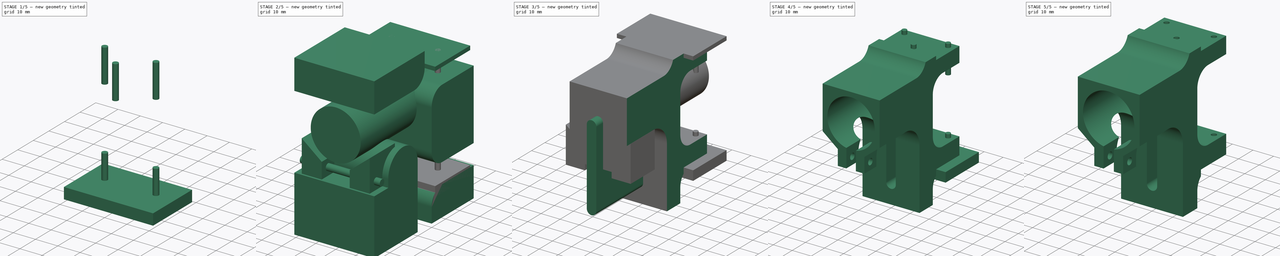
[diagram: build sequence overview — one tinted view per stage of 5, left to right]
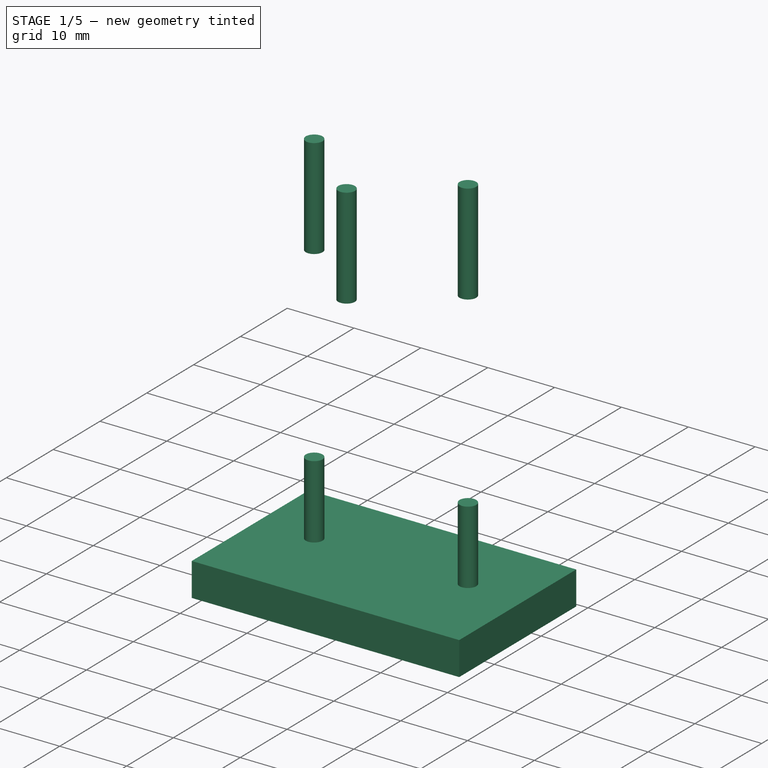
[diagram: stage 1 of 5 — iso view after this stage's code; geometry added in this stage tinted green]
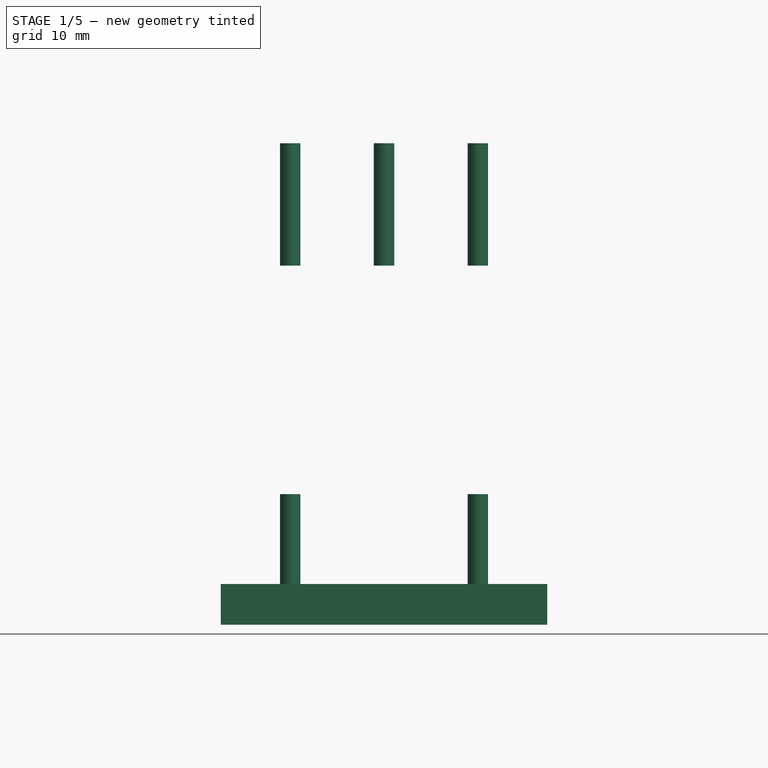
[diagram: stage 1 of 5 — front view after this stage's code; geometry added in this stage tinted green]
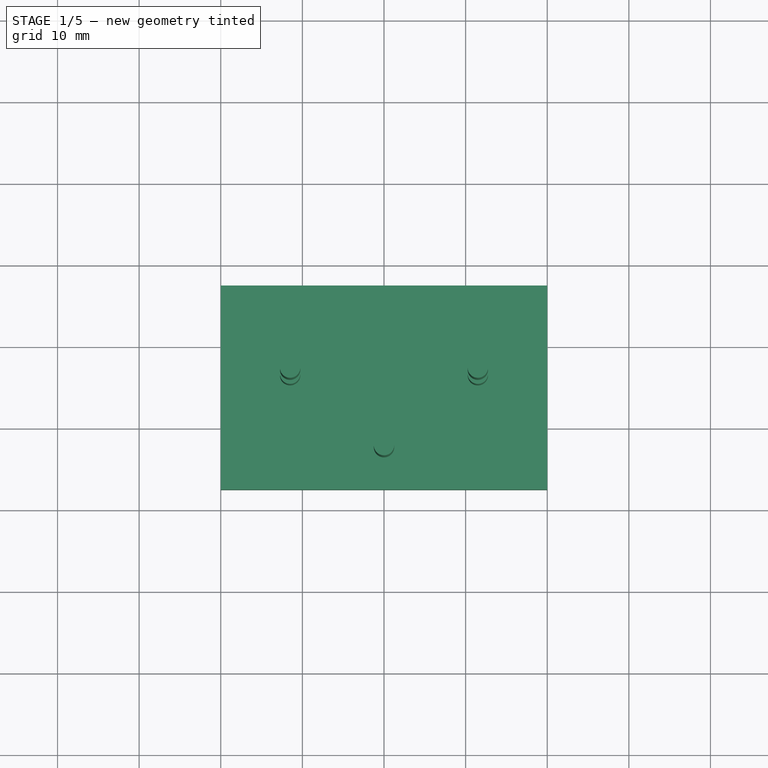
[diagram: stage 1 of 5 — top view after this stage's code; geometry added in this stage tinted green]
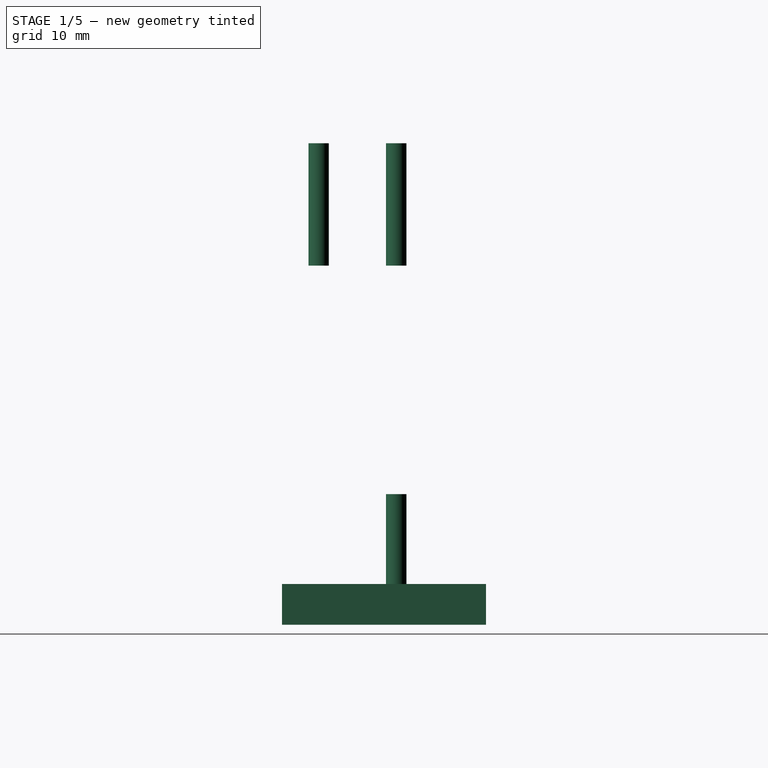
[diagram: stage 1 of 5 — right view after this stage's code; geometry added in this stage tinted green]
FCSTD DOCUMENT  (FreeCAD 0.16R6698 (Git))
Label: body-bracket-mt-holes
License: All rights reserved
LicenseURL: http://en.wikipedia.org/wiki/All_rights_reserved
objects: Sketcher::SketchObject×9, Part::Extrusion×9, Part::Cut×8
note: 26 computed .brp shape members not serialized (recipe doc carries the construction recipe); baked Part::Feature solids carry a one-line shape summary decoded from their .brp

FEATURE [Sketcher::SketchObject] Sketch011
  Placement = pos=(0,35,16) rot=(0,0,1;0rad)
  sketch-geometry (4):
    g0: LineSegment StartX=-20 StartY=32.5 StartZ=0 EndX=20 EndY=32.5 EndZ=0
    g1: LineSegment StartX=20 StartY=32.5 StartZ=0 EndX=20 EndY=7.5 EndZ=0
    g2: LineSegment StartX=20 StartY=7.5 StartZ=0 EndX=-20 EndY=7.5 EndZ=0
    g3: LineSegment StartX=-20 StartY=7.5 StartZ=0 EndX=-20 EndY=32.5 EndZ=0
  constraints (12):
    c: Coincident(g0,g1)
    c: Coincident(g1,g2)
    c: Coincident(g2,g3)
    c: Coincident(g3,g0)
    c: Horizontal(g0)
    c: Horizontal(g2)
    c: Vertical(g1)
    c: Vertical(g3)
    c: Symmetric(g2,g1,g-2)
    c: Distance(g2) = 40
    c: Distance(g1) = 25
    c: DistanceY(g-1,g1) = 7.5
FEATURE [Part::Extrusion] Extrude007
  Base = -> Sketch011
  Dir = (0,0,-5)
  Solid = true
FEATURE [Sketcher::SketchObject] Sketch012
  Placement = pos=(0,0,70) rot=(0,0,1;0rad)
  sketch-geometry (6):
    g0: Circle CenterX=0 CenterY=47 CenterZ=0 NormalX=0 NormalY=0 NormalZ=1 Radius=1.25
    g1: Circle CenterX=11.5 CenterY=56.5 CenterZ=0 NormalX=0 NormalY=0 NormalZ=1 Radius=1.25
    g2: Circle CenterX=-11.5 CenterY=56.5 CenterZ=0 NormalX=0 NormalY=0 NormalZ=1 Radius=1.25
    g3: LineSegment [constr] StartX=11.5 StartY=56.5 StartZ=0 EndX=0 EndY=47 EndZ=0
    g4: LineSegment [constr] StartX=0 StartY=47 StartZ=0 EndX=-11.5 EndY=56.5 EndZ=0
    g5: LineSegment [constr] StartX=-11.5 StartY=56.5 StartZ=0 EndX=11.5 EndY=56.5 EndZ=0
  constraints (15):
    c: PointOnObject(g0,g-2)
    c: Coincident(g3,g1)
    c: Coincident(g3,g0)
    c: Coincident(g3,g4)
    c: Coincident(g4,g2)
    c: Coincident(g4,g5)
    c: Coincident(g5,g3)
    c: Horizontal(g5)
    c: Radius(g2) = 1.25
    c: Equal(g2,g1)
    c: Equal(g1,g0)
    c: Equal(g4,g3)
    c: Distance(g5) = 23
    c: DistanceY(g0,g1) = 9.5
    c: DistanceY(g-1,g1) = 56.5
FEATURE [Part::Extrusion] Extrude008
  Base = -> Sketch012
  Dir = (0,0,-15)
  Solid = true
FEATURE [Sketcher::SketchObject] Sketch013
  Placement = pos=(0,0,15) rot=(0,0,1;0rad)
  sketch-geometry (5):
    g0: Circle CenterX=11.5 CenterY=56.5 CenterZ=0 NormalX=0 NormalY=0 NormalZ=1 Radius=1.25
    g1: Circle CenterX=-11.5 CenterY=56.5 CenterZ=0 NormalX=0 NormalY=0 NormalZ=1 Radius=1.25
    g2: LineSegment [constr] StartX=11.5 StartY=56.5 StartZ=0 EndX=0 EndY=47 EndZ=0
    g3: LineSegment [constr] StartX=0 StartY=47 StartZ=0 EndX=-11.5 EndY=56.5 EndZ=0
    g4: LineSegment [constr] StartX=-11.5 StartY=56.5 StartZ=0 EndX=11.5 EndY=56.5 EndZ=0
  constraints (13):
    c: Coincident(g2,g0)
    c: Coincident(g2,g3)
    c: Coincident(g3,g1)
    c: Coincident(g3,g4)
    c: Coincident(g4,g2)
    c: Horizontal(g4)
    c: Radius(g1) = 1.25
    c: Equal(g1,g0)
    c: Equal(g3,g2)
    c: Distance(g4) = 23
    c: DistanceY(g-1,g0) = 56.5
    c: DistanceY(g2,g0) = 9.5
    c: PointOnObject(g2,g-2)
FEATURE [Part::Extrusion] Extrude009
  Base = -> Sketch013
  Dir = (0,0,12)
  Solid = true
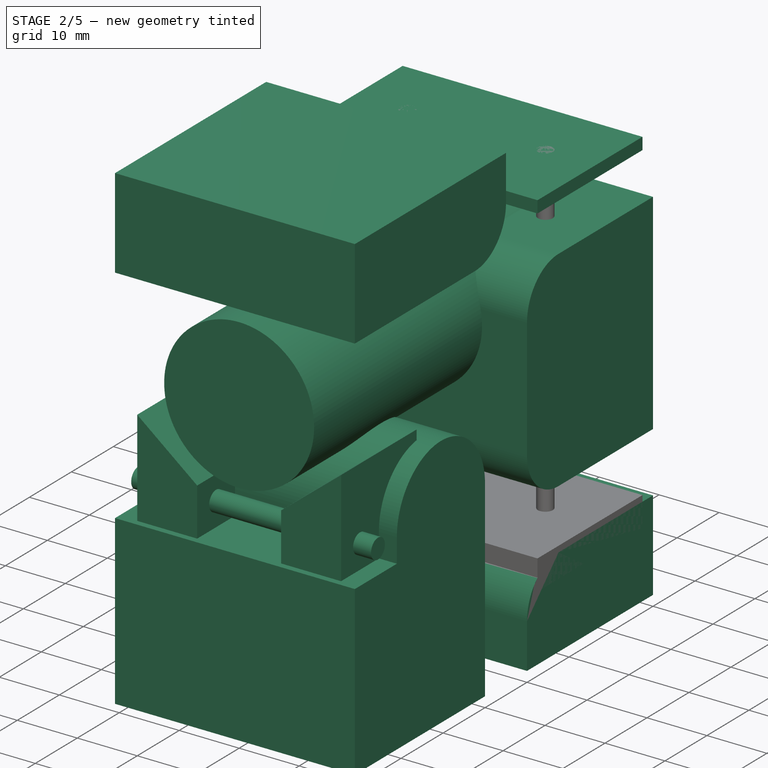
[diagram: stage 2 of 5 — iso view after this stage's code; geometry added in this stage tinted green]
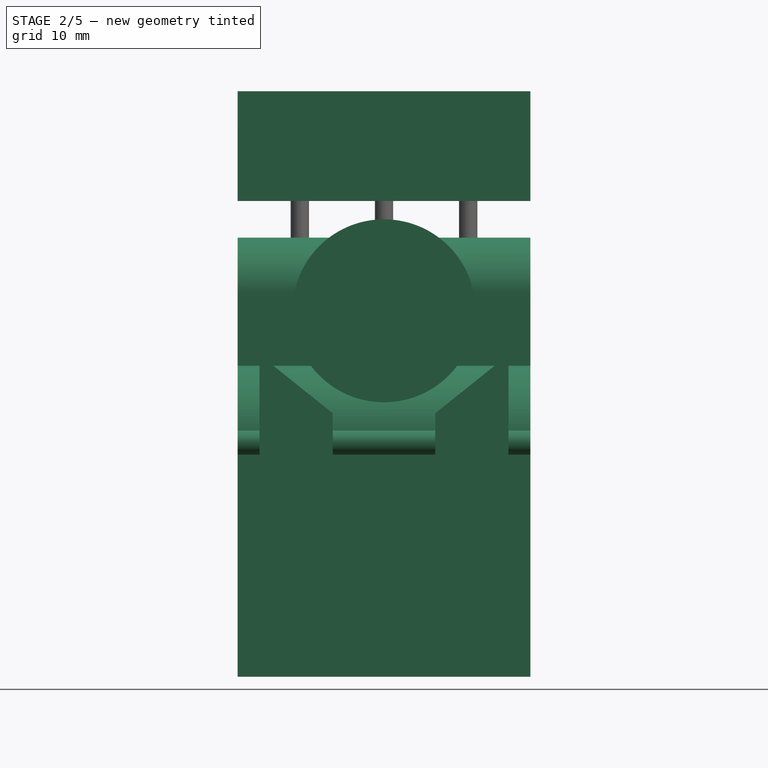
[diagram: stage 2 of 5 — front view after this stage's code; geometry added in this stage tinted green]
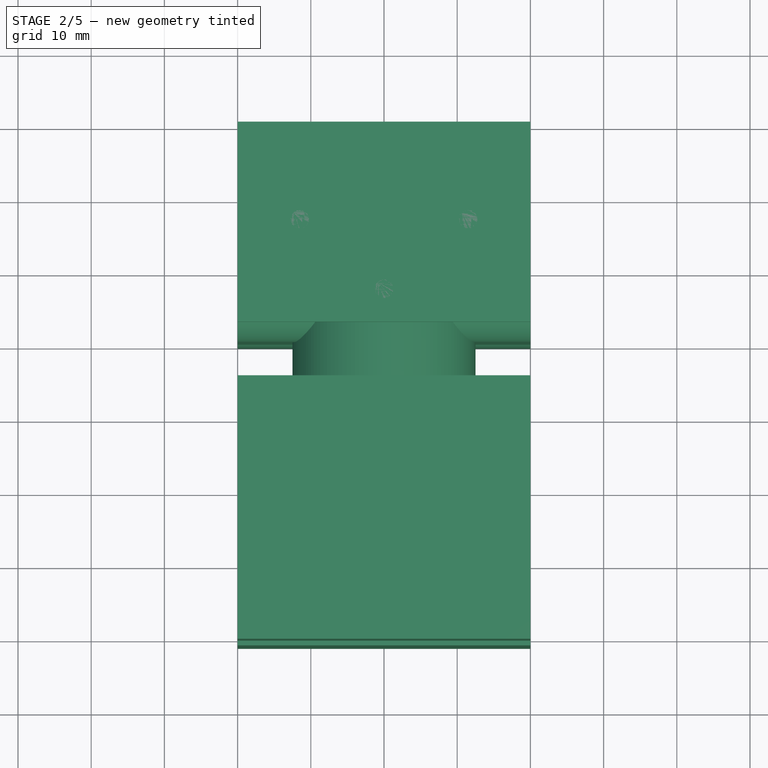
[diagram: stage 2 of 5 — top view after this stage's code; geometry added in this stage tinted green]
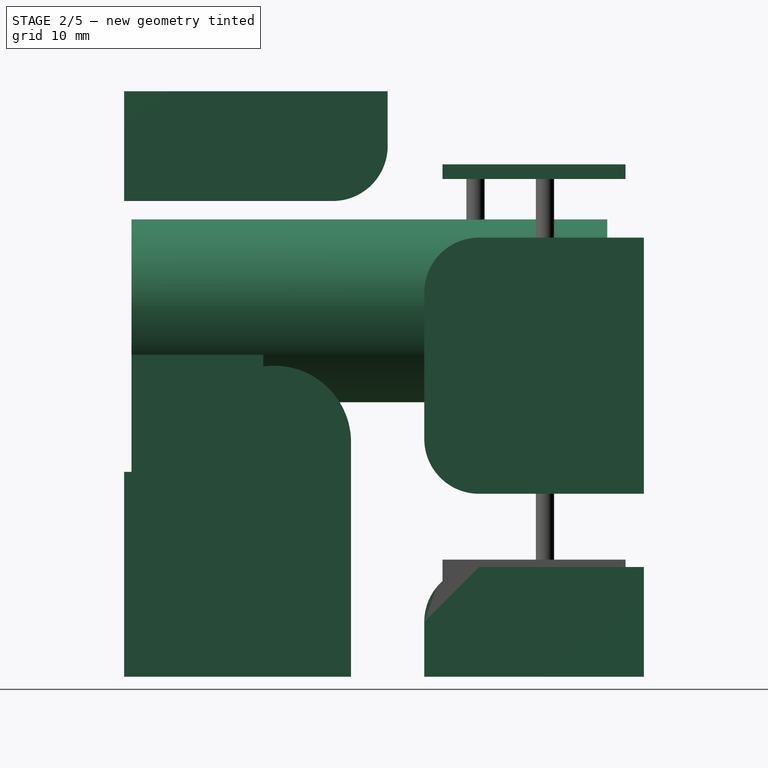
[diagram: stage 2 of 5 — right view after this stage's code; geometry added in this stage tinted green]
FEATURE [Sketcher::SketchObject] Sketch004  label="cut-xy"
  Placement = pos=(0,40,0) rot=(0.57735,0.57735,0.57735;2.0944rad)
  sketch-geometry (24):
    g0: LineSegment StartX=7.5 StartY=15 StartZ=0 EndX=30 EndY=15 EndZ=0
    g1: LineSegment StartX=30 StartY=15 StartZ=0 EndX=30 EndY=0 EndZ=0
    g2: LineSegment StartX=30 StartY=0 StartZ=0 EndX=0 EndY=0 EndZ=0
    g3: LineSegment StartX=0 StartY=0 StartZ=0 EndX=0 EndY=7.5 EndZ=0
    g4: ArcOfCircle CenterX=7.5 CenterY=7.5 CenterZ=0 NormalX=0 NormalY=0 NormalZ=1 Radius=7.5 StartAngle=1.5708 EndAngle=3.14159
    g5: LineSegment StartX=7.5 StartY=60 StartZ=0 EndX=30 EndY=60 EndZ=0
    g6: LineSegment StartX=30 StartY=60 StartZ=0 EndX=30 EndY=25 EndZ=0
    g7: LineSegment StartX=30 StartY=25 StartZ=0 EndX=7.5 EndY=25 EndZ=0
    g8: LineSegment StartX=0 StartY=32.5 StartZ=0 EndX=0 EndY=52.5 EndZ=0
    g9: ArcOfCircle CenterX=7.5 CenterY=32.5 CenterZ=0 NormalX=0 NormalY=0 NormalZ=1 Radius=7.5 StartAngle=3.14159 EndAngle=4.71239
    g10: ArcOfCircle CenterX=7.5 CenterY=52.5 CenterZ=0 NormalX=0 NormalY=0 NormalZ=1 Radius=7.5 StartAngle=1.5708 EndAngle=3.14159
    g11: LineSegment StartX=-10 StartY=32 StartZ=0 EndX=-10 EndY=0 EndZ=0
    g12: LineSegment StartX=-10 StartY=0 StartZ=0 EndX=-41 EndY=0 EndZ=0
    g13: LineSegment StartX=-41 StartY=0 StartZ=0 EndX=-41 EndY=28 EndZ=0
    g14: LineSegment StartX=-41 StartY=80 StartZ=0 EndX=-5 EndY=80 EndZ=0
    g15: LineSegment StartX=-5 StartY=80 StartZ=0 EndX=-5 EndY=72.5 EndZ=0
    g16: LineSegment StartX=-12.5 StartY=65 StartZ=0 EndX=-41 EndY=65 EndZ=0
    g17: LineSegment StartX=-41 StartY=65 StartZ=0 EndX=-41 EndY=80 EndZ=0
    g18: ArcOfCircle CenterX=-12.5 CenterY=72.5 CenterZ=0 NormalX=0 NormalY=0 NormalZ=1 Radius=7.5 StartAngle=4.71239 EndAngle=6.28319
    g19: LineSegment StartX=-41 StartY=28 StartZ=0 EndX=-31 EndY=28 EndZ=0
    g20: LineSegment [constr] StartX=-31 StartY=32 StartZ=0 EndX=-10 EndY=32 EndZ=0
    g21: Circle CenterX=-35.5 CenterY=32 CenterZ=0 NormalX=0 NormalY=0 NormalZ=1 Radius=1.65
    g22: LineSegment StartX=-31 StartY=28 StartZ=0 EndX=-31 EndY=32 EndZ=0
    g23: ArcOfCircle CenterX=-20.5 CenterY=32 CenterZ=0 NormalX=0 NormalY=0 NormalZ=1 Radius=10.5 StartAngle=0 EndAngle=3.14159
  constraints (68):
    c: Coincident(g0,g1)
    c: Coincident(g1,g2)
    c: Coincident(g2,g3)
    c: Horizontal(g0)
    c: Horizontal(g2)
    c: Vertical(g1)
    c: Vertical(g3)
    c: Tangent(g0,g4) = 1.5708
    c: Tangent(g3,g4) = 1.5708
    c: Radius(g4) = 7.5
    c: PointOnObject(g3,g-2)
    c: Coincident(g2,g-1)
    c: Coincident(g5,g6)
    c: Coincident(g6,g7)
    c: Horizontal(g5)
    c: Horizontal(g7)
    c: Vertical(g6)
    c: Vertical(g8)
    c: Tangent(g8,g9) = 1.5708
    c: Tangent(g7,g9) = 1.5708
    c: Tangent(g8,g10) = 1.5708
    c: Tangent(g5,g10) = 1.5708
    c: Equal(g10,g9)
    c: Equal(g9,g4)
    c: PointOnObject(g8,g-2)
    c: DistanceX(g3,g0) = 30
    c: Equal(g5,g0)
    c: DistanceY(g0,g6) = 10
    c: DistanceY(g1,g5) = 60
    c: DistanceY(g1,g0) = 15
    c: Coincident(g11,g12)
    c: Coincident(g12,g13)
    c: Horizontal(g12)
    c: Vertical(g11)
    c: Vertical(g13)
    c: PointOnObject(g11,g-1)
    c: DistanceX(g11,g-1) = 10
    c: DistanceX(g12,g11) = 31
    c: DistanceY(g12,g13) = 28
    c: Coincident(g14,g15)
    c: Coincident(g16,g17)
    c: Coincident(g17,g14)
    c: Horizontal(g14)
    c: Horizontal(g16)
    c: Vertical(g15)
    c: Vertical(g17)
    c: Tangent(g15,g18) = 1.5708
    c: Tangent(g16,g18) = 1.5708
    c: Equal(g18,g10)
    c: DistanceY(g13,g16) = 37
    c: DistanceX(g14,g11) = 31
    c: DistanceY(g16,g14) = 15
    c: Parallel(g19,g12)
    c: Coincident(g13,g19)
    c: Horizontal(g20)
    c: Distance(g19) = 10
    c: Coincident(g11,g20)
    c: DistanceX(g11,g14) = 5
    c: Radius(g21) = 1.65
    c: DistanceX(g13,g21) = 5.5
    c: DistanceY(g13,g21) = 4
    c: Coincident(g22,g19)
    c: Vertical(g22)
    c: Coincident(g22,g20)
    c: DistanceY(g11,g11) = 32
    c: PointOnObject(g23,g20)
    c: Coincident(g23,g11)
    c: Coincident(g23,g20)
FEATURE [Part::Extrusion] Extrude  label="extrude-cut-xy"
  Base = -> Sketch004
  Dir = (40,0,0)
  Placement = pos=(-20,0,0) rot=(0,0,1;0rad)
  Solid = true
FEATURE [Sketcher::SketchObject] Sketch006
  Placement = pos=(0,0,0) rot=(1,0,0;1.5708rad)
  sketch-geometry (1):
    g0: Circle CenterX=0 CenterY=50 CenterZ=0 NormalX=0 NormalY=0 NormalZ=1 Radius=12.5
  constraints (3):
    c: PointOnObject(g0,g-2)
    c: Radius(g0) = 12.5
    c: DistanceY(g-1,g0) = 50
FEATURE [Part::Extrusion] Extrude003
  Base = -> Sketch006
  Dir = (0,65,0)
  Solid = true
FEATURE [Sketcher::SketchObject] Sketch007
  Placement = pos=(0,0,0) rot=(1,0,0;1.5708rad)
  sketch-geometry (8):
    g0: LineSegment StartX=17 StartY=44 StartZ=0 EndX=7 EndY=36 EndZ=0
    g1: LineSegment StartX=7 StartY=36 StartZ=0 EndX=7 EndY=25 EndZ=0
    g2: LineSegment StartX=7 StartY=25 StartZ=0 EndX=17 EndY=25 EndZ=0
    g3: LineSegment StartX=17 StartY=25 StartZ=0 EndX=17 EndY=44 EndZ=0
    g4: LineSegment StartX=-17 StartY=44 StartZ=0 EndX=-7 EndY=36 EndZ=0
    g5: LineSegment StartX=-7 StartY=36 StartZ=0 EndX=-7 EndY=25 EndZ=0
    g6: LineSegment StartX=-7 StartY=25 StartZ=0 EndX=-17 EndY=25 EndZ=0
    g7: LineSegment StartX=-17 StartY=25 StartZ=0 EndX=-17 EndY=44 EndZ=0
  constraints (24):
    c: Coincident(g0,g1)
    c: Vertical(g1)
    c: Coincident(g1,g2)
    c: Horizontal(g2)
    c: Coincident(g2,g3)
    c: Vertical(g3)
    c: Coincident(g0,g3)
    c: DistanceY(g3,g3) = 19
    c: DistanceY(g1,g1) = 11
    c: DistanceY(g-1,g2) = 25
    c: DistanceX(g-1,g1) = 7
    c: Distance(g2) = 10
    c: Coincident(g4,g5)
    c: Vertical(g5)
    c: Coincident(g5,g6)
    c: Horizontal(g6)
    c: Coincident(g6,g7)
    c: Vertical(g7)
    c: Coincident(g4,g7)
    c: Distance(g6) = 10
    c: DistanceX(g5,g-1) = 7
    c: DistanceY(g5,g4) = 11
    c: DistanceY(g6,g4) = 19
    c: DistanceY(g-1,g6) = 25
FEATURE [Part::Extrusion] Extrude004
  Base = -> Sketch007
  Dir = (0,18,0)
  Solid = true
FEATURE [Sketcher::SketchObject] Sketch010
  Placement = pos=(0,35,70) rot=(0,0,1;0rad)
  sketch-geometry (4):
    g0: LineSegment StartX=-20 StartY=32.5 StartZ=0 EndX=20 EndY=32.5 EndZ=0
    g1: LineSegment StartX=20 StartY=32.5 StartZ=0 EndX=20 EndY=7.5 EndZ=0
    g2: LineSegment StartX=20 StartY=7.5 StartZ=0 EndX=-20 EndY=7.5 EndZ=0
    g3: LineSegment StartX=-20 StartY=7.5 StartZ=0 EndX=-20 EndY=32.5 EndZ=0
  constraints (12):
    c: Coincident(g0,g1)
    c: Coincident(g1,g2)
    c: Coincident(g2,g3)
    c: Coincident(g3,g0)
    c: Horizontal(g0)
    c: Horizontal(g2)
    c: Vertical(g1)
    c: Vertical(g3)
    c: Symmetric(g2,g1,g-2)
    c: Distance(g2) = 40
    c: Distance(g1) = 25
    c: DistanceY(g-1,g1) = 7.5
FEATURE [Part::Extrusion] Extrude006
  Base = -> Sketch010
  Dir = (0,0,-2)
  Solid = true
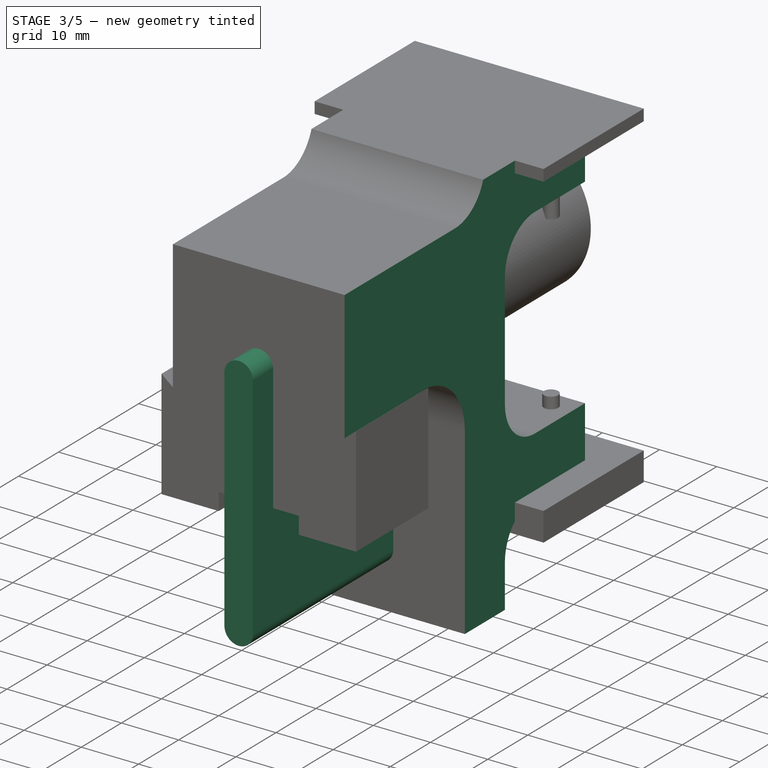
[diagram: stage 3 of 5 — iso view after this stage's code; geometry added in this stage tinted green]
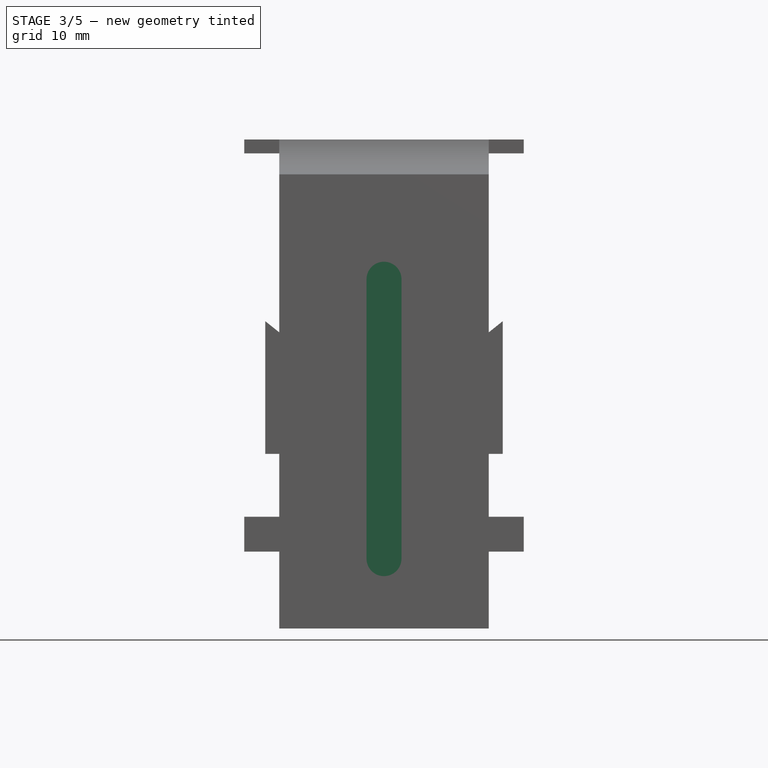
[diagram: stage 3 of 5 — front view after this stage's code; geometry added in this stage tinted green]
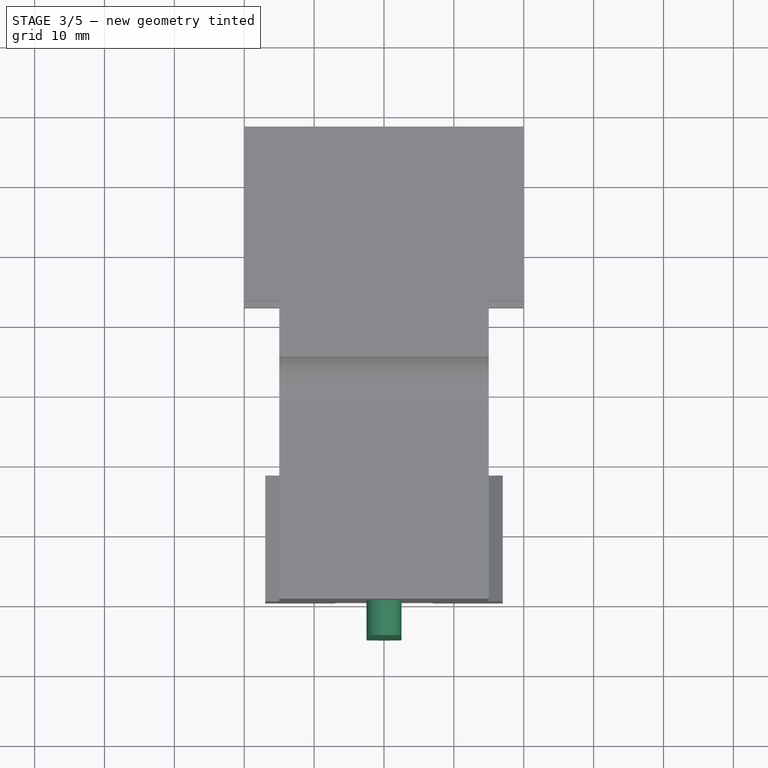
[diagram: stage 3 of 5 — top view after this stage's code; geometry added in this stage tinted green]
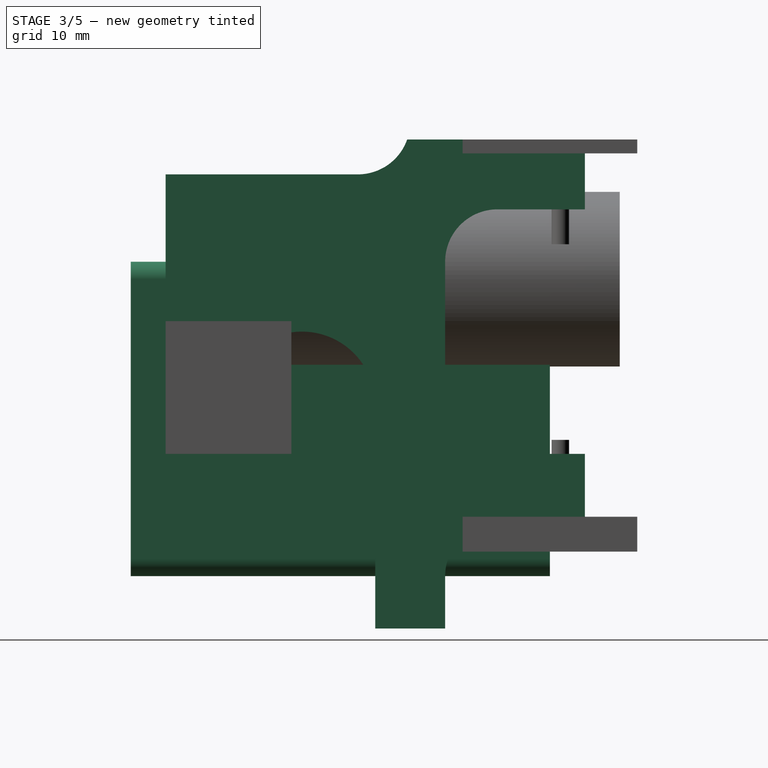
[diagram: stage 3 of 5 — right view after this stage's code; geometry added in this stage tinted green]
FEATURE [Sketcher::SketchObject] Sketch
  Placement = pos=(0,0,0) rot=(1,0,0;1.5708rad)
  sketch-geometry (4):
    g0: LineSegment StartX=-15 StartY=70 StartZ=0 EndX=15 EndY=70 EndZ=0
    g1: LineSegment StartX=15 StartY=70 StartZ=0 EndX=15 EndY=0 EndZ=0
    g2: LineSegment StartX=15 StartY=0 StartZ=0 EndX=-15 EndY=0 EndZ=0
    g3: LineSegment StartX=-15 StartY=0 StartZ=0 EndX=-15 EndY=70 EndZ=0
  constraints (12):
    c: Coincident(g0,g1)
    c: Coincident(g1,g2)
    c: Coincident(g2,g3)
    c: Coincident(g3,g0)
    c: Horizontal(g0)
    c: Horizontal(g2)
    c: Vertical(g1)
    c: Vertical(g3)
    c: PointOnObject(g2,g-1)
    c: DistanceX(g2,g2) = 30
    c: Symmetric(g2,g1,g-2)
    c: DistanceY(g1,g0) = 70
FEATURE [Part::Extrusion] Extrude001  label="block"
  Base = -> Sketch
  Dir = (0,60,0)
  Solid = true
FEATURE [Sketcher::SketchObject] Sketch005
  Placement = pos=(0,-5,0) rot=(1,0,0;1.5708rad)
  sketch-geometry (6):
    g0: LineSegment StartX=2.5 StartY=50 StartZ=0 EndX=2.5 EndY=10 EndZ=0
    g1: LineSegment StartX=-2.5 StartY=10 StartZ=0 EndX=-2.5 EndY=50 EndZ=0
    g2: ArcOfCircle CenterX=0 CenterY=50 CenterZ=0 NormalX=0 NormalY=0 NormalZ=1 Radius=2.5 StartAngle=0 EndAngle=3.14159
    g3: ArcOfCircle CenterX=0 CenterY=10 CenterZ=0 NormalX=0 NormalY=0 NormalZ=1 Radius=2.5 StartAngle=3.14159 EndAngle=6.28319
    g4: LineSegment [constr] StartX=-2.5 StartY=10 StartZ=0 EndX=2.5 EndY=10 EndZ=0
    g5: LineSegment [constr] StartX=-2.5 StartY=50 StartZ=0 EndX=2.5 EndY=50 EndZ=0
  constraints (16):
    c: Vertical(g0)
    c: Vertical(g1)
    c: Tangent(g0,g2) = 1.5708
    c: Tangent(g0,g3) = 1.5708
    c: Coincident(g1,g3)
    c: Coincident(g2,g1)
    c: Coincident(g4,g1)
    c: Coincident(g4,g0)
    c: Coincident(g5,g1)
    c: Coincident(g5,g0)
    c: Horizontal(g5)
    c: Horizontal(g4)
    c: PointOnObject(g3,g-2)
    c: DistanceY(g-1,g3) = 10
    c: DistanceX(g1,g0) = 5
    c: DistanceY(g3,g2) = 40
FEATURE [Part::Extrusion] Extrude002
  Base = -> Sketch005
  Dir = (0,60,0)
  Solid = true
FEATURE [Part::Cut] Cut
  Base = -> Extrude001
  Tool = -> Extrude
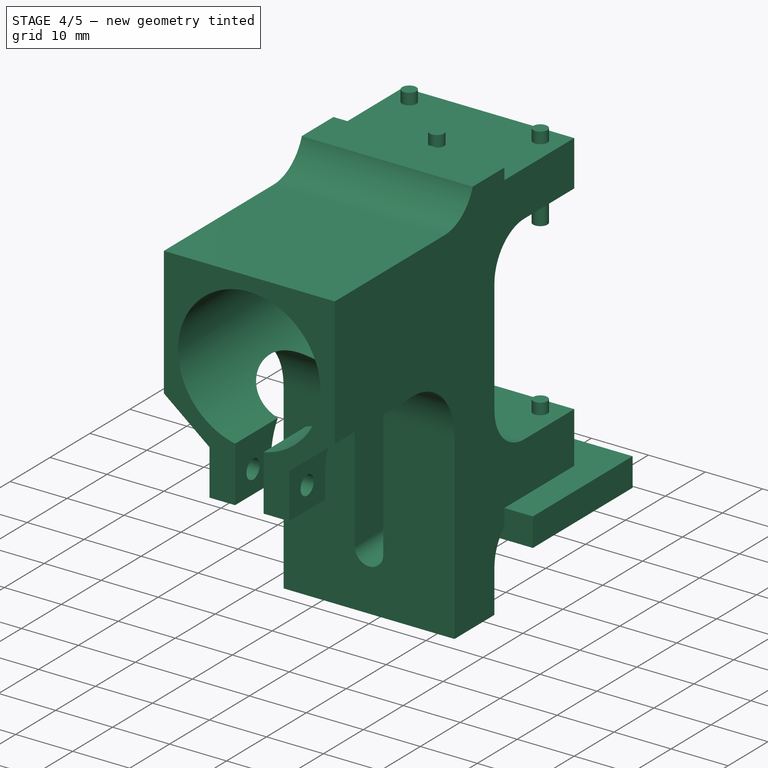
[diagram: stage 4 of 5 — iso view after this stage's code; geometry added in this stage tinted green]
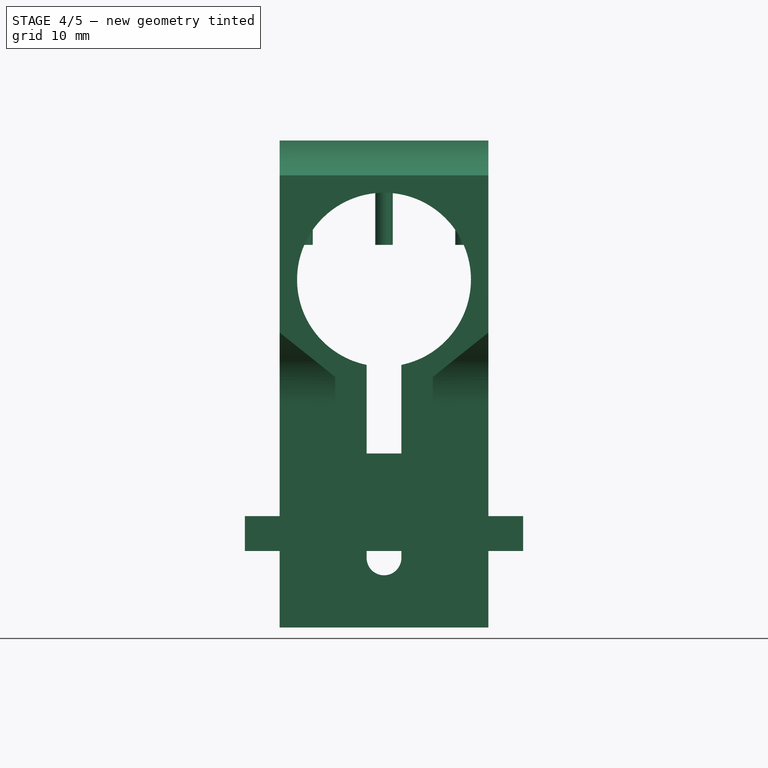
[diagram: stage 4 of 5 — front view after this stage's code; geometry added in this stage tinted green]
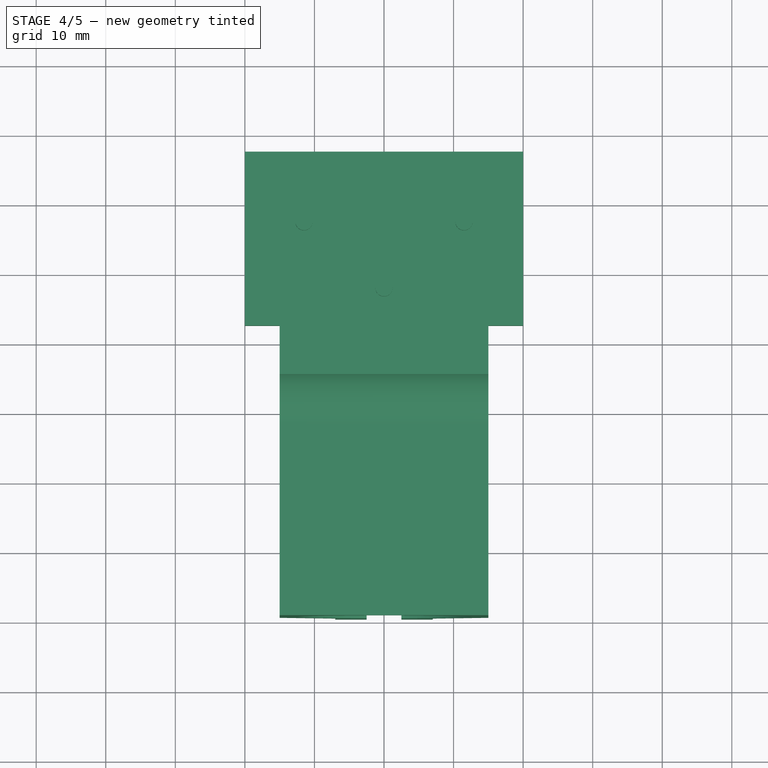
[diagram: stage 4 of 5 — top view after this stage's code; geometry added in this stage tinted green]
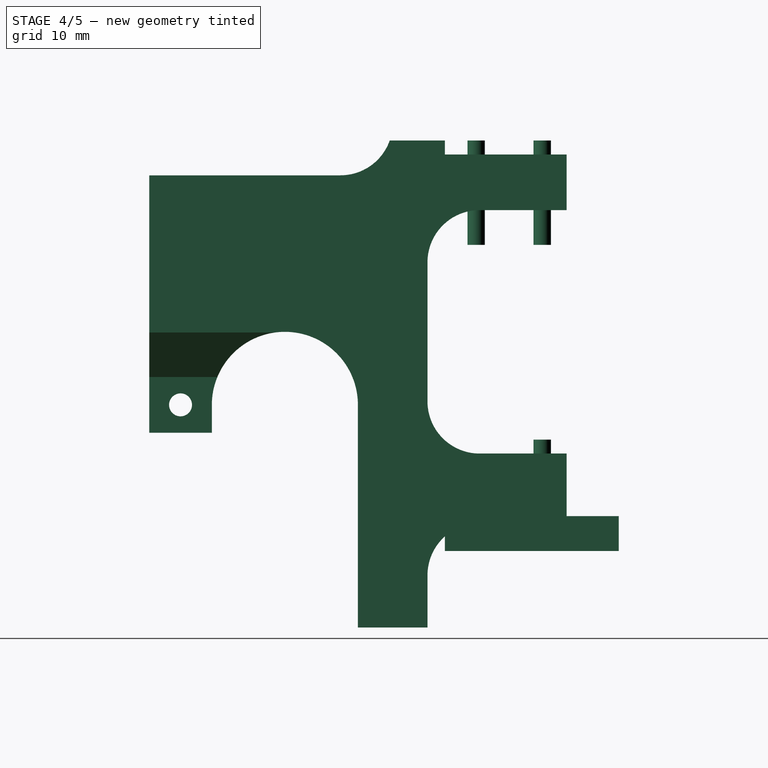
[diagram: stage 4 of 5 — right view after this stage's code; geometry added in this stage tinted green]
FEATURE [Part::Cut] Cut001
  Base = -> Cut
  Tool = -> Extrude002
FEATURE [Part::Cut] Cut002
  Base = -> Cut001
  Tool = -> Extrude003
FEATURE [Part::Cut] Cut003
  Base = -> Cut002
  Tool = -> Extrude004
FEATURE [Part::Cut] Cut004
  Base = -> Cut003
  Tool = -> Extrude006
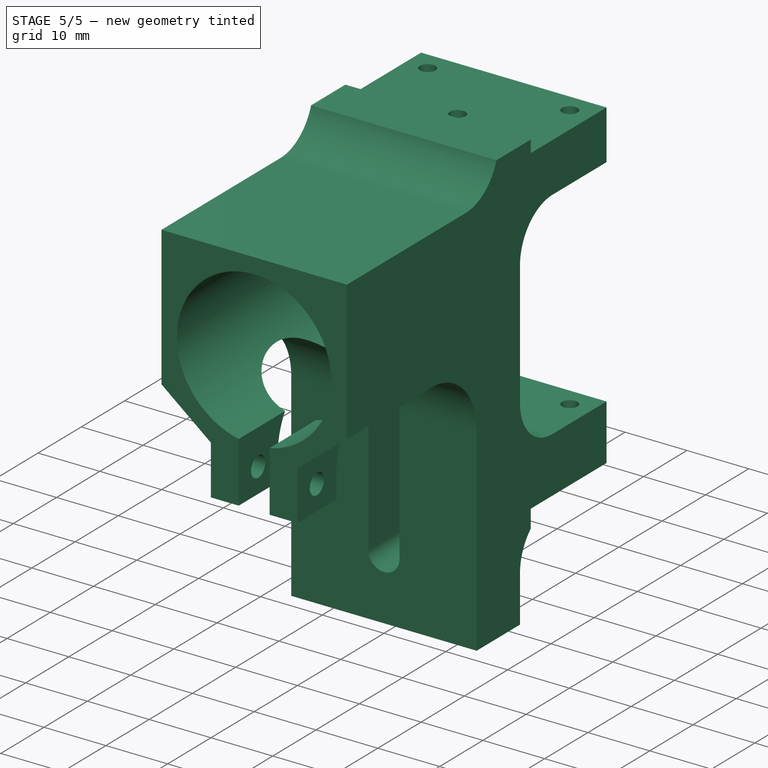
[diagram: stage 5 of 5 — iso view after this stage's code; geometry added in this stage tinted green]
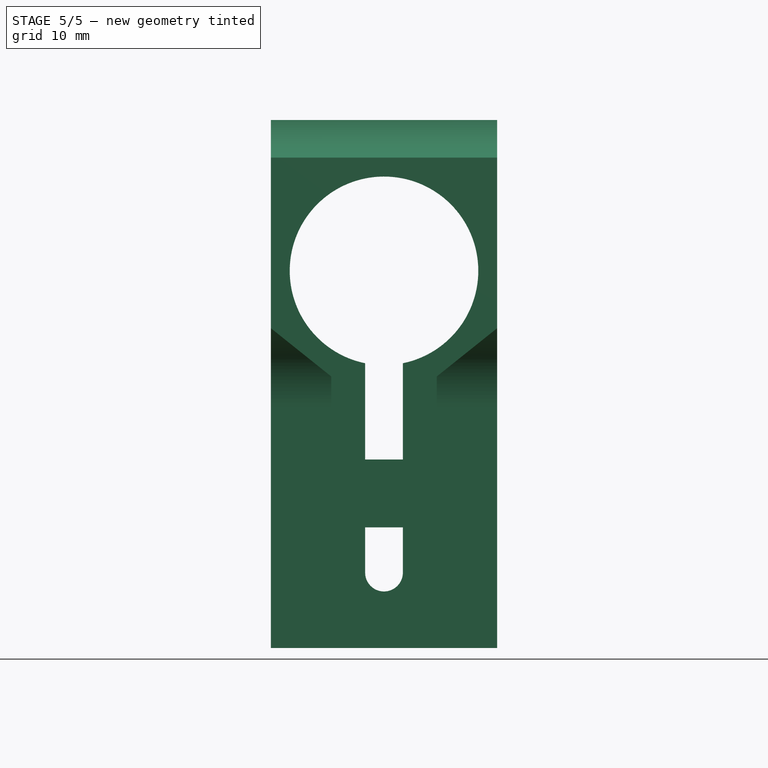
[diagram: stage 5 of 5 — front view after this stage's code; geometry added in this stage tinted green]
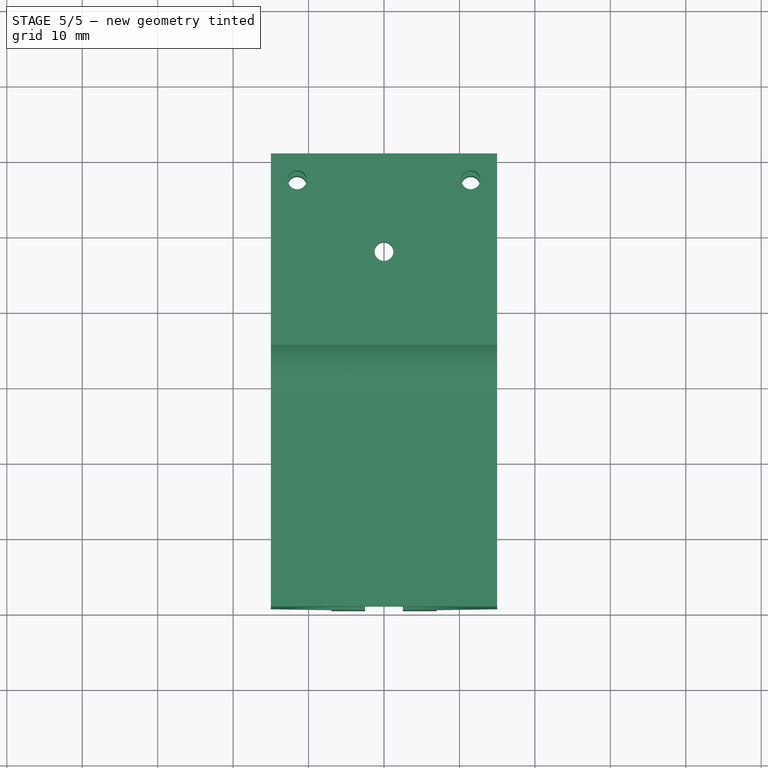
[diagram: stage 5 of 5 — top view after this stage's code; geometry added in this stage tinted green]
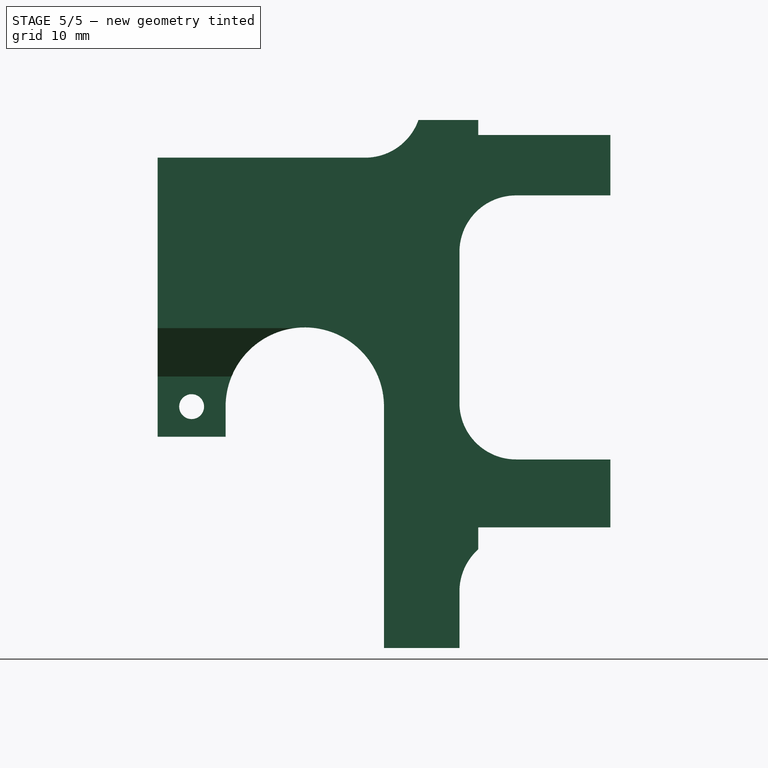
[diagram: stage 5 of 5 — right view after this stage's code; geometry added in this stage tinted green]
FEATURE [Part::Cut] Cut005
  Base = -> Cut004
  Tool = -> Extrude007
FEATURE [Part::Cut] Cut006
  Base = -> Cut005
  Tool = -> Extrude008
FEATURE [Part::Cut] Cut007
  Base = -> Cut006
  Tool = -> Extrude009
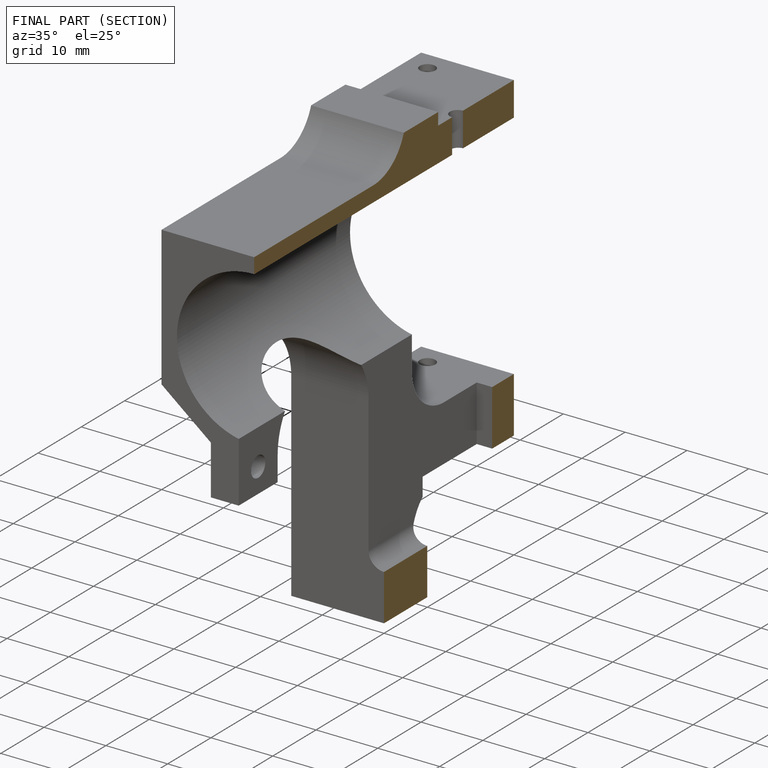
[diagram: finished part — half-section view (interior)]
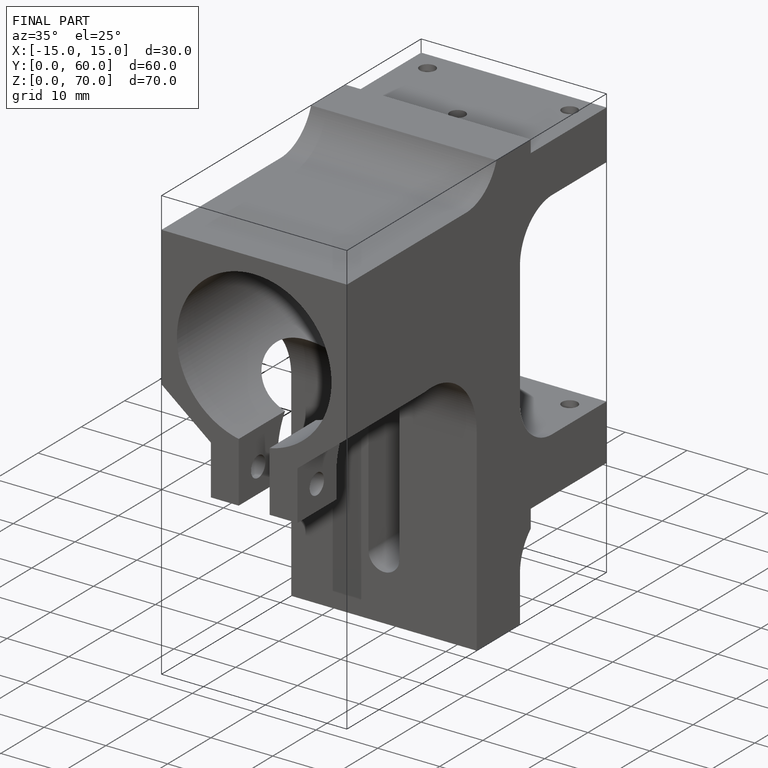
[diagram: finished part — iso view with bounding-box wireframe]
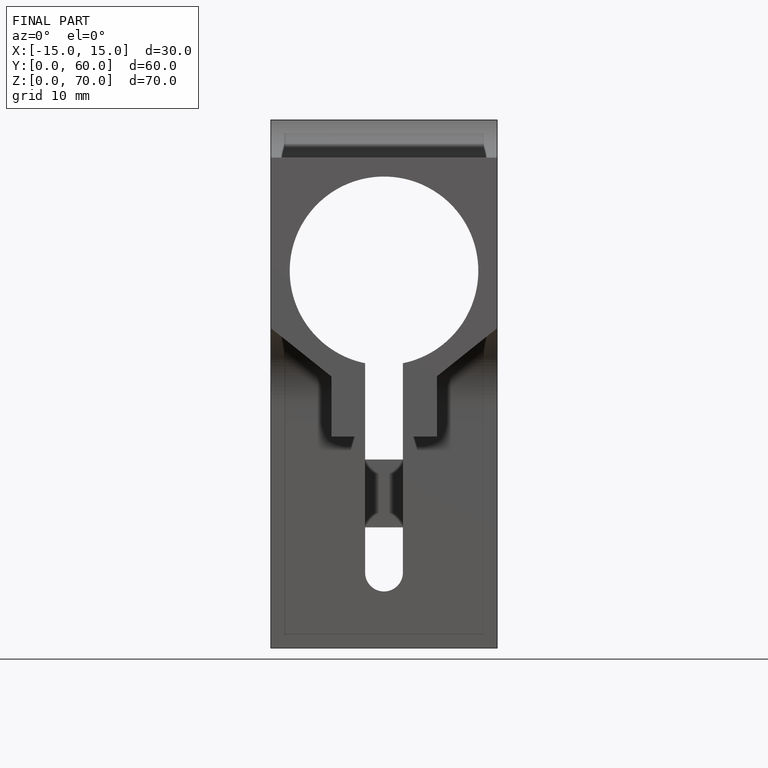
[diagram: finished part — front view with bounding-box wireframe]
